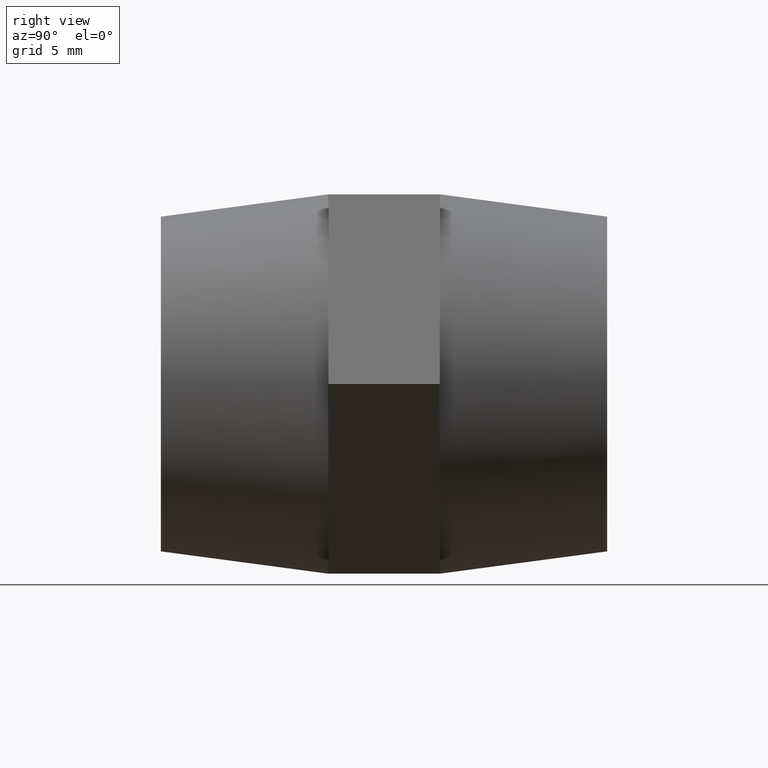
[diagram: clean part render]
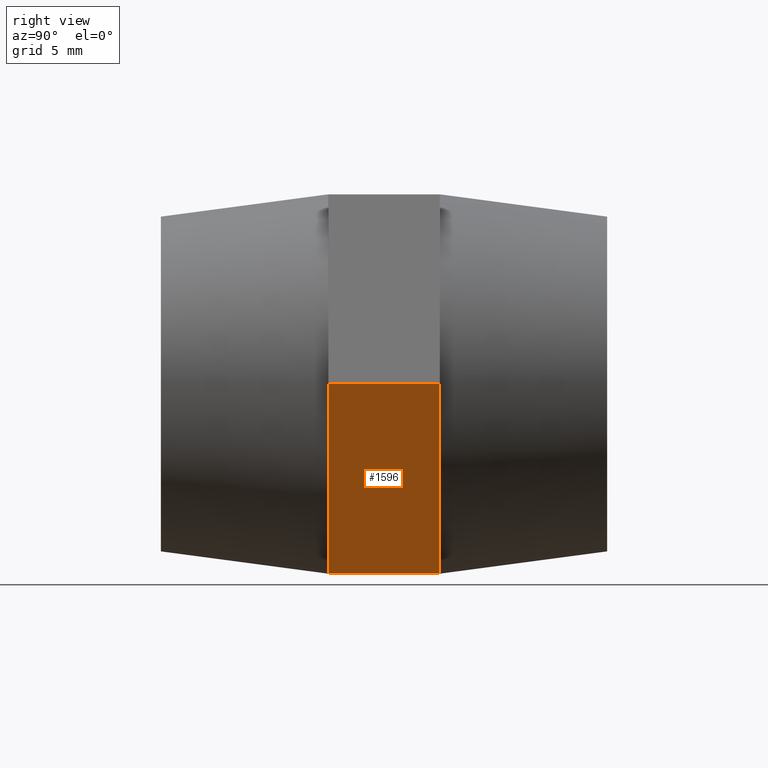
[diagram: same view with one face highlighted and labeled with its STEP entity id]
A machine part, right view. The second image highlights one B-rep face of the part: STEP entity #1596.
In plain terms, the highlighted planar face has unit normal (-0.866, 0, 0.5).
Its self-contained STEP definition (entity closure, byte-faithful):
#1 = CARTESIAN_POINT ( 'NONE',  ( 4.907477288111810100, 2.500000000000000000, -8.500000000000000000 ) ) ;
#56 = VECTOR ( 'NONE', #2371, 1000.000000000000000 ) ;
#99 = VECTOR ( 'NONE', #401, 1000.000000000000000 ) ;
#105 = DIRECTION ( 'NONE',  ( 0.0000000000000000000, -1.000000000000000000, 0.0000000000000000000 ) ) ;
#401 = DIRECTION ( 'NONE',  ( -0.4999999999999998900, 0.0000000000000000000, -0.8660254037844387100 ) ) ;
#502 = CARTESIAN_POINT ( 'NONE',  ( 9.814954576223639600, 2.500000000000000000, -1.574757103346314900E-015 ) ) ;
#539 = LINE ( 'NONE', #502, #3846 ) ;
#547 = DIRECTION ( 'NONE',  ( -0.4999999999999998900, 0.0000000000000000000, -0.8660254037844387100 ) ) ;
#758 = EDGE_CURVE ( 'NONE', #828, #3218, #539, .T. ) ;
#807 = LINE ( 'NONE', #2503, #3178 ) ;
#828 = VERTEX_POINT ( 'NONE', #1011 ) ;
#837 = CARTESIAN_POINT ( 'NONE',  ( 7.361215932167730200, -2.500000000000000000, -4.250000000000000000 ) ) ;
#927 = EDGE_CURVE ( 'NONE', #3377, #2629, #1987, .T. ) ;
#957 = ORIENTED_EDGE ( 'NONE', *, *, #3602, .T. ) ;
#983 = CARTESIAN_POINT ( 'NONE',  ( 9.814954576223639600, 2.500000000000000000, -1.574757103346314900E-015 ) ) ;
#986 = AXIS2_PLACEMENT_3D ( 'NONE', #983, #2457, #1902 ) ;
#1011 = CARTESIAN_POINT ( 'NONE',  ( 9.814954576223639600, 2.500000000000000000, -1.574757103346314900E-015 ) ) ;
#1079 = CARTESIAN_POINT ( 'NONE',  ( 9.814954576223639600, 2.500000000000000000, -1.574757103346314900E-015 ) ) ;
#1090 = LINE ( 'NONE', #1079, #1737 ) ;
#1174 = CARTESIAN_POINT ( 'NONE',  ( 7.361215932167730200, 2.500000000000000000, -4.250000000000000000 ) ) ;
#1188 = FACE_OUTER_BOUND ( 'NONE', #2190, .T. ) ;
#1244 = ORIENTED_EDGE ( 'NONE', *, *, #3621, .T. ) ;
#1289 = DIRECTION ( 'NONE',  ( 0.0000000000000000000, -1.000000000000000000, 0.0000000000000000000 ) ) ;
#1352 = CARTESIAN_POINT ( 'NONE',  ( 9.814954576223639600, -2.500000000000000000, -1.574757103346314900E-015 ) ) ;
#1509 = VERTEX_POINT ( 'NONE', #1775 ) ;
#1596 = ADVANCED_FACE ( 'NONE', ( #1188 ), #3367, .F. ) ;
#1737 = VECTOR ( 'NONE', #547, 1000.000000000000000 ) ;
#1775 = CARTESIAN_POINT ( 'NONE',  ( 9.814954576223639600, -2.500000000000000000, -1.574757103346314900E-015 ) ) ;
#1848 = EDGE_CURVE ( 'NONE', #3218, #3377, #1090, .T. ) ;
#1902 = DIRECTION ( 'NONE',  ( 0.4999999999999998900, 0.0000000000000000000, 0.8660254037844387100 ) ) ;
#1987 = LINE ( 'NONE', #2172, #3371 ) ;
#2172 = CARTESIAN_POINT ( 'NONE',  ( 4.907477288111810100, 2.500000000000000000, -8.500000000000000000 ) ) ;
#2190 = EDGE_LOOP ( 'NONE', ( #957, #3703, #2972, #2801, #3384, #1244 ) ) ;
#2371 = DIRECTION ( 'NONE',  ( -0.4999999999999998900, 0.0000000000000000000, -0.8660254037844387100 ) ) ;
#2442 = EDGE_CURVE ( 'NONE', #2733, #2629, #3086, .T. ) ;
#2457 = DIRECTION ( 'NONE',  ( -0.8660254037844387100, 0.0000000000000000000, 0.4999999999999998900 ) ) ;
#2503 = CARTESIAN_POINT ( 'NONE',  ( 9.814954576223639600, 2.500000000000000000, -1.574757103346314900E-015 ) ) ;
#2629 = VERTEX_POINT ( 'NONE', #3729 ) ;
#2668 = CARTESIAN_POINT ( 'NONE',  ( 9.814954576223639600, -2.500000000000000000, -1.574757103346314900E-015 ) ) ;
#2716 = LINE ( 'NONE', #1352, #99 ) ;
#2733 = VERTEX_POINT ( 'NONE', #837 ) ;
#2801 = ORIENTED_EDGE ( 'NONE', *, *, #1848, .F. ) ;
#2972 = ORIENTED_EDGE ( 'NONE', *, *, #927, .F. ) ;
#3076 = DIRECTION ( 'NONE',  ( -0.4999999999999998900, 0.0000000000000000000, -0.8660254037844387100 ) ) ;
#3086 = LINE ( 'NONE', #2668, #56 ) ;
#3178 = VECTOR ( 'NONE', #105, 1000.000000000000000 ) ;
#3218 = VERTEX_POINT ( 'NONE', #1174 ) ;
#3367 = PLANE ( 'NONE',  #986 ) ;
#3371 = VECTOR ( 'NONE', #1289, 1000.000000000000000 ) ;
#3377 = VERTEX_POINT ( 'NONE', #1 ) ;
#3384 = ORIENTED_EDGE ( 'NONE', *, *, #758, .F. ) ;
#3602 = EDGE_CURVE ( 'NONE', #1509, #2733, #2716, .T. ) ;
#3621 = EDGE_CURVE ( 'NONE', #828, #1509, #807, .T. ) ;
#3703 = ORIENTED_EDGE ( 'NONE', *, *, #2442, .T. ) ;
#3729 = CARTESIAN_POINT ( 'NONE',  ( 4.907477288111810100, -2.500000000000000000, -8.500000000000000000 ) ) ;
#3846 = VECTOR ( 'NONE', #3076, 1000.000000000000000 ) ;